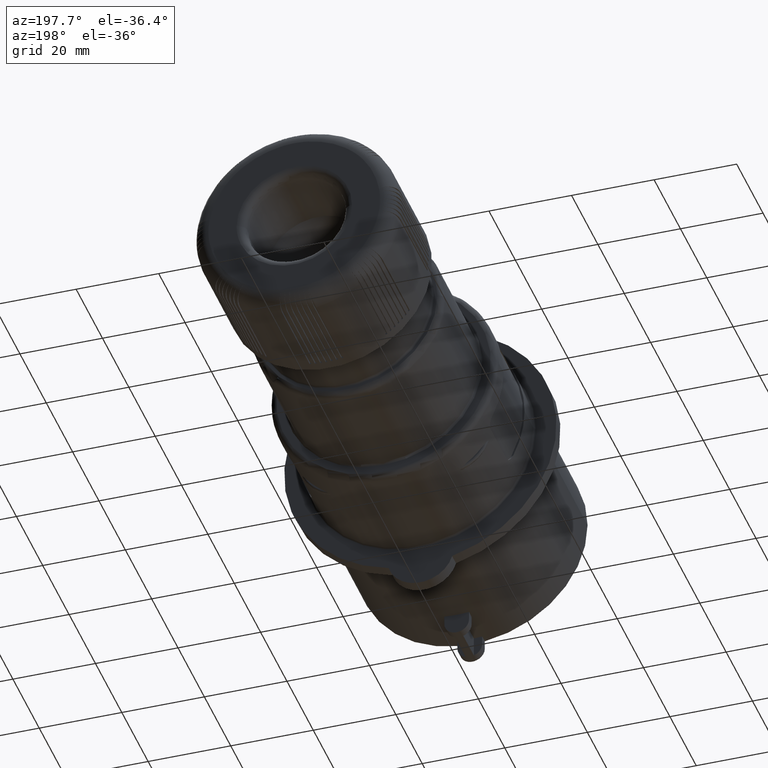
[diagram: clean part render]
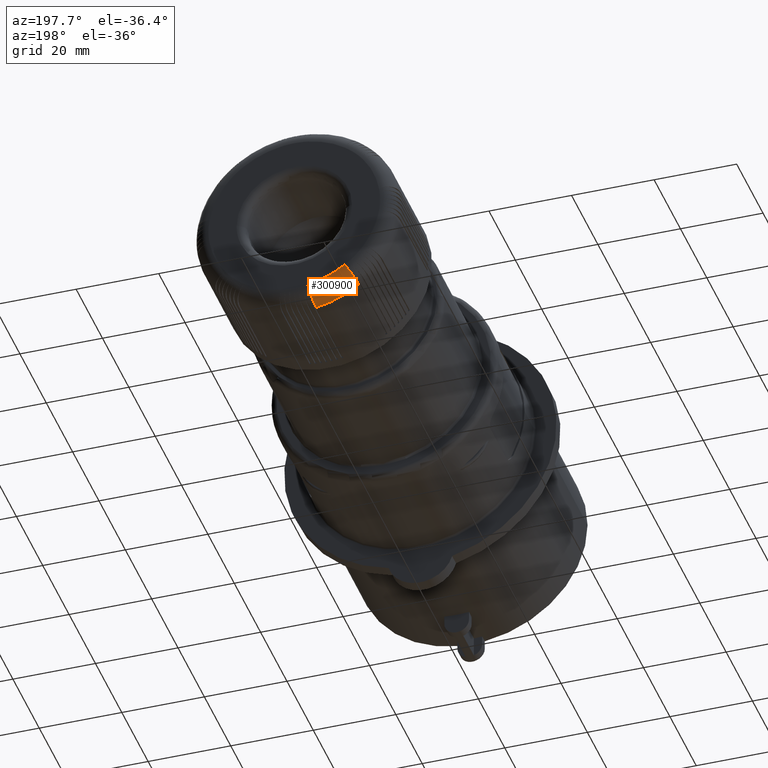
[diagram: same view with one face highlighted and labeled with its STEP entity id]
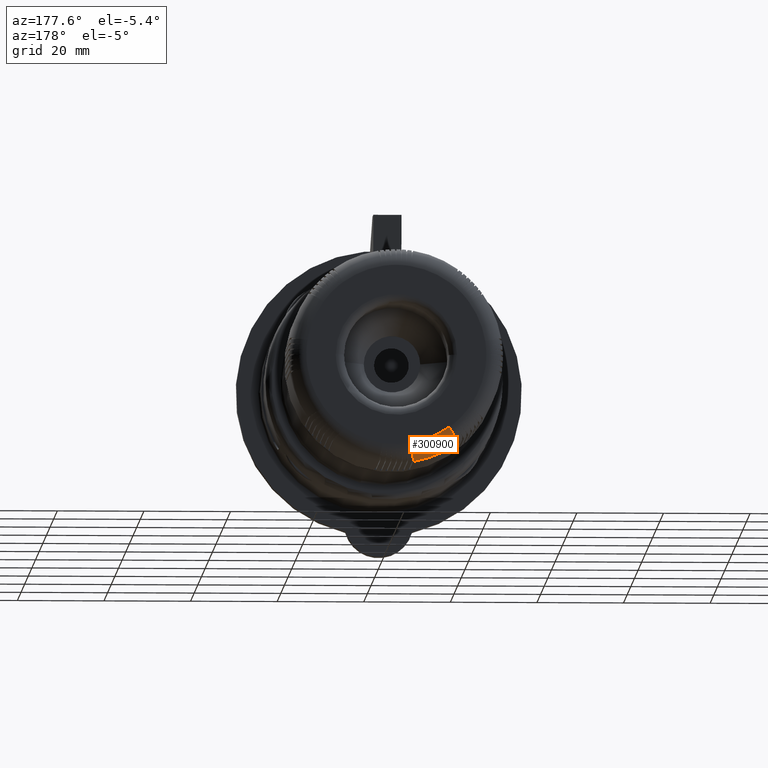
[diagram: same view with one face highlighted and labeled with its STEP entity id]
A machine part, auxiliary view. The second image highlights one B-rep face of the part: STEP entity #300900.
A second angle (auxiliary view) of the same face is appended — the face is thin or edge-on in the first view.
In plain terms, the highlighted toroidal blend (fillet) surface has major radius 20.7491 mm and minor (blend) radius 4 mm.
Its self-contained STEP definition (entity closure, byte-faithful):
#36900=CARTESIAN_POINT('',(-200.,15.772253609118,8.56357709134279E-13));
#36910=DIRECTION('',(-3.37423673639642E-15,-1.,-2.94209101525666E-15));
#36920=DIRECTION('',(-1.,3.38164839058091E-15,-7.60381550260158E-31));
#36930=AXIS2_PLACEMENT_3D('',#36900,#36910,#36920);
#36940=TOROIDAL_SURFACE('',#36930,20.7490806411889,4.);
#38060=CARTESIAN_POINT('',(-200.,15.772253609118,8.56357709134279E-13));
#38070=DIRECTION('',(-3.37423673639642E-15,-1.,-2.94209101525666E-15));
#38080=DIRECTION('',(-0.707106781186548,4.46631818539067E-15,
-0.707106781186547));
#38090=AXIS2_PLACEMENT_3D('',#38060,#38070,#38080);
#38100=CIRCLE('',#38090,24.7490806411889);
#115860=CARTESIAN_POINT('',(-199.999999999999,19.772253609118,
6.97595816612881E-13));
#115870=DIRECTION('',(-3.37423673639642E-15,-1.,-2.94209101525666E-15));
#115880=DIRECTION('',(-2.22044604925016E-16,2.94209101525666E-15,-1.));
#115890=AXIS2_PLACEMENT_3D('',#115860,#115870,#115880);
#115900=CIRCLE('',#115890,20.7490806411889);
#136910=CARTESIAN_POINT('',(-214.377065476291,15.7722536091181,
-20.1448996243331));
#136920=CARTESIAN_POINT('',(-214.377065476291,15.8373451316884,
-20.1448996243331));
#136930=CARTESIAN_POINT('',(-214.376198843939,15.9025855482711,
-20.1435651275375));
#136940=CARTESIAN_POINT('',(-214.374456420752,15.9678645135954,
-20.1408820311187));
#136950=CARTESIAN_POINT('',(-214.372714003787,16.0331432457743,
-20.1381989442827));
#136960=CARTESIAN_POINT('',(-214.370095772089,16.0984597159869,
-20.1341672210239));
#136970=CARTESIAN_POINT('',(-214.36659852975,16.1636974400494,
-20.1287819400759));
#136980=CARTESIAN_POINT('',(-214.363101295382,16.2289350154161,
-20.1233966714026));
#136990=CARTESIAN_POINT('',(-214.358725066785,16.2940929942921,
-20.1166578703113));
#137000=CARTESIAN_POINT('',(-214.353473129793,16.3590517754315,
-20.1085705965455));
#137010=CARTESIAN_POINT('',(-214.348221198422,16.4240104870442,
-20.1004833314356));
#137020=CARTESIAN_POINT('',(-214.342093614959,16.4887691340278,
-20.0910476803471));
#137030=CARTESIAN_POINT('',(-214.335100320739,16.5532078994871,
-20.0802789515962));
#137040=CARTESIAN_POINT('',(-214.328107025835,16.6176466712454,
-20.0695102217926));
#137050=CARTESIAN_POINT('',(-214.320248114984,16.6817646994634,
-20.0574085603191));
#137060=CARTESIAN_POINT('',(-214.311540029837,16.7454447325883,
-20.0439992850995));
#137070=CARTESIAN_POINT('',(-214.302831933636,16.8091248465503,
-20.0305899928578));
#137080=CARTESIAN_POINT('',(-214.293274794169,16.8723661289777,
-20.015873288639));
#137090=CARTESIAN_POINT('',(-214.282891073936,16.9350565585943,
-19.9998837616577));
#137100=CARTESIAN_POINT('',(-214.272507327857,16.9977471442524,
-19.9838941948772));
#137110=CARTESIAN_POINT('',(-214.261297164965,17.0598860870984,
-19.9666320578011));
#137120=CARTESIAN_POINT('',(-214.249288257971,17.1213691445422,
-19.9481399626676));
#137130=CARTESIAN_POINT('',(-214.237279048351,17.1828537513689,
-19.9296474015303));
#137140=CARTESIAN_POINT('',(-214.224472507011,17.2436761331595,
-19.909927057213));
#137150=CARTESIAN_POINT('',(-214.210896788184,17.303758164746,
-19.8890222834339));
#137160=CARTESIAN_POINT('',(-214.197314853085,17.3638677076797,
-19.8681079374338));
#137170=CARTESIAN_POINT('',(-214.182901765384,17.4235066289632,
-19.8459137286632));
#137180=CARTESIAN_POINT('',(-214.167671955205,17.4825670109249,
-19.8224618775629));
#137190=CARTESIAN_POINT('',(-214.1524422003,17.5416271785378,
-19.7990101115768));
#137200=CARTESIAN_POINT('',(-214.136395868205,17.6001080451021,
-19.7743009269865));
#137210=CARTESIAN_POINT('',(-214.119554161581,17.6579000857989,
-19.7483669730249));
#137220=CARTESIAN_POINT('',(-214.10271249429,17.7156919915242,
-19.7224330796313));
#137230=CARTESIAN_POINT('',(-214.08507564336,17.7727943005716,
-19.6952747108126));
#137240=CARTESIAN_POINT('',(-214.066671444445,17.8290990458586,
-19.6669347297161));
#137250=CARTESIAN_POINT('',(-214.048267266267,17.8854037277046,
-19.6385947805516));
#137260=CARTESIAN_POINT('',(-214.029095971389,17.9409100869699,
-19.6090735752585));
#137270=CARTESIAN_POINT('',(-214.009191595365,17.9955145239038,
-19.5784235239922));
#137280=CARTESIAN_POINT('',(-213.989287218569,18.0501189629544,
-19.5477734715377));
#137290=CARTESIAN_POINT('',(-213.968650026573,18.1038207516424,
-19.5159949826304));
#137300=CARTESIAN_POINT('',(-213.947319544128,18.1565231234467,
-19.483148920053));
#137310=CARTESIAN_POINT('',(-213.925989035974,18.2092255587733,
-19.4503028178861));
#137320=CARTESIAN_POINT('',(-213.903965531583,18.2609278974029,
-19.4163895950938));
#137330=CARTESIAN_POINT('',(-213.881293060696,18.3115423361042,
-19.3814770515311));
#137340=CARTESIAN_POINT('',(-213.858620535005,18.3621568971487,
-19.3465644235793));
#137350=CARTESIAN_POINT('',(-213.835299357964,18.4116829434852,
-19.3106529601385));
#137360=CARTESIAN_POINT('',(-213.811376800888,18.460043425185,
-19.2738154526519));
#137370=CARTESIAN_POINT('',(-213.787454149095,18.508404098358,
-19.236977799315));
#137380=CARTESIAN_POINT('',(-213.762930470793,18.555598624713,
-19.1992146463148));
#137390=CARTESIAN_POINT('',(-213.737854649046,18.6015622731909,
-19.1606012669669));
#137400=CARTESIAN_POINT('',(-213.712777364911,18.6475286022057,
-19.1219856357396));
#137410=CARTESIAN_POINT('',(-213.687030855719,18.6924784007744,
-19.0823394882945));
#137420=CARTESIAN_POINT('',(-213.66065066153,18.7363224991257,
-19.0417175515236));
#137430=CARTESIAN_POINT('',(-213.634270564629,18.7801664357826,
-19.001095764564));
#137440=CARTESIAN_POINT('',(-213.607257072388,18.8229040746597,
-18.9594986343127));
#137450=CARTESIAN_POINT('',(-213.579652319731,18.8644493690633,
-18.9169910428604));
#137460=CARTESIAN_POINT('',(-213.552047633191,18.9059945639587,
-18.8744835532211));
#137470=CARTESIAN_POINT('',(-213.523852020077,18.9463468396472,
-18.8310661164528));
#137480=CARTESIAN_POINT('',(-213.495113432722,18.9854261088946,
-18.7868125726756));
#137490=CARTESIAN_POINT('',(-213.466374879547,19.0245053316636,
-18.7425590815308));
#137500=CARTESIAN_POINT('',(-213.437093720979,19.0623110118797,
-18.6974700513528));
#137510=CARTESIAN_POINT('',(-213.407322753375,19.0987713243904,
-18.6516267813992));
#137520=CARTESIAN_POINT('',(-213.377551786635,19.135231635842,
-18.6057835127773));
#137530=CARTESIAN_POINT('',(-213.347291405545,19.1703460953821,
-18.5591866121467));
#137540=CARTESIAN_POINT('',(-213.31659809412,19.2040529311964,
-18.5119230572591));
#137550=CARTESIAN_POINT('',(-213.285904748027,19.2377598050818,
-18.4646594489886));
#137560=CARTESIAN_POINT('',(-213.254778882676,19.2700586344629,
-18.4167298194654));
#137570=CARTESIAN_POINT('',(-213.22327933308,19.3008989918913,
-18.3682247666677));
#137580=CARTESIAN_POINT('',(-213.191779710084,19.3317394211844,
-18.3197196008428));
#137590=CARTESIAN_POINT('',(-213.159906820166,19.361121031457,
-18.2706396543614));
#137600=CARTESIAN_POINT('',(-213.127720328361,19.3890055239802,
-18.2210768033239));
#137610=CARTESIAN_POINT('',(-213.095533720206,19.4168901173033,
-18.1715137731213));
#137620=CARTESIAN_POINT('',(-213.063033922406,19.4432773288176,
-18.1214684731587));
#137630=CARTESIAN_POINT('',(-213.030279718451,19.4681412383178,
-18.0710314220704));
#137640=CARTESIAN_POINT('',(-212.997540020344,19.4929941363435,
-18.0206167080285));
#137650=CARTESIAN_POINT('',(-212.964398748882,19.5164372647475,
-17.9695836252482));
#137660=CARTESIAN_POINT('',(-212.930898907738,19.5384192530609,
-17.9179983935771));
#137670=CARTESIAN_POINT('',(-212.897399853584,19.5604007249654,
-17.8664143737652));
#137680=CARTESIAN_POINT('',(-212.863545440164,19.5809186499787,
-17.8142831486695));
#137690=CARTESIAN_POINT('',(-212.829392155314,19.5999229866113,
-17.7616917019292));
#137700=CARTESIAN_POINT('',(-212.795238954654,19.618927276397,
-17.7091003848303));
#137710=CARTESIAN_POINT('',(-212.760787306533,19.6364176819605,
-17.6560494989437));
#137720=CARTESIAN_POINT('',(-212.726097883478,19.6523536124868,
-17.6026324717665));
#137730=CARTESIAN_POINT('',(-212.691408504215,19.6682895228955,
-17.5492155120232));
#137740=CARTESIAN_POINT('',(-212.656481798707,19.6826707219179,
-17.495433101908));
#137750=CARTESIAN_POINT('',(-212.621381255659,19.6954675353376,
-17.4413830054563));
#137760=CARTESIAN_POINT('',(-212.586280716403,19.7082643473744,
-17.387332914845));
#137770=CARTESIAN_POINT('',(-212.551006801857,19.7194766027908,
-17.3330158497019));
#137780=CARTESIAN_POINT('',(-212.515624387302,19.7290864119744,
-17.2785317091931));
#137790=CARTESIAN_POINT('',(-212.48024193588,19.738696231171,
-17.2240475119148));
#137800=CARTESIAN_POINT('',(-212.444751449247,19.7467035024638,
-17.169396955));
#137810=CARTESIAN_POINT('',(-212.409217698875,19.7531024043633,
-17.1146797777689));
#137820=CARTESIAN_POINT('',(-212.373683869241,19.7595013205364,
-17.0599624784848));
#137830=CARTESIAN_POINT('',(-212.33810723186,19.7642918373961,
-17.0051792610514));
#137840=CARTESIAN_POINT('',(-212.302550900965,19.7674798933288,
-16.9504273128651));
#137850=CARTESIAN_POINT('',(-212.266994445628,19.7706679604192,
-16.8956751730548));
#137860=CARTESIAN_POINT('',(-212.231458731757,19.7722536091181,
-16.8409549722996));
#137870=CARTESIAN_POINT('',(-212.196003599518,19.7722536091181,
-16.7863588563773));
#137880=B_SPLINE_CURVE_WITH_KNOTS('',3,(#136910,#136920,#136930,#136940,
#136950,#136960,#136970,#136980,#136990,#137000,#137010,#137020,#137030,
#137040,#137050,#137060,#137070,#137080,#137090,#137100,#137110,#137120,
#137130,#137140,#137150,#137160,#137170,#137180,#137190,#137200,#137210,
#137220,#137230,#137240,#137250,#137260,#137270,#137280,#137290,#137300,
#137310,#137320,#137330,#137340,#137350,#137360,#137370,#137380,#137390,
#137400,#137410,#137420,#137430,#137440,#137450,#137460,#137470,#137480,
#137490,#137500,#137510,#137520,#137530,#137540,#137550,#137560,#137570,
#137580,#137590,#137600,#137610,#137620,#137630,#137640,#137650,#137660,
#137670,#137680,#137690,#137700,#137710,#137720,#137730,#137740,#137750,
#137760,#137770,#137780,#137790,#137800,#137810,#137820,#137830,#137840,
#137850,#137860,#137870),.UNSPECIFIED.,.F.,.F.,(4,3,3,3,3,3,3,3,3,3,3,3,
3,3,3,3,3,3,3,3,3,3,3,3,3,3,3,3,3,3,3,3,4),(0.,0.195689105513218,
0.392072543133135,0.588927632410991,0.786012510527309,0.983076380401962,
1.17986918984075,1.37615136151592,1.57170745523093,1.76735744047809,
1.96371123468733,2.16054796692925,2.35762698117694,2.55469810205211,
2.75151130072726,2.94782637716585,3.14342331153557,3.33902936667144,
3.53534965183967,3.73216538056535,3.92923739661961,4.12631644078724,
4.32315278594795,4.51950585072803,4.71515440312348,4.91071064004362,
5.10699057161034,5.30378054464068,5.5008429496413,5.69792950198935,
5.89479084772114,6.09118610698367,6.28689296167259),.UNSPECIFIED.);
#137890=CARTESIAN_POINT('',(-214.377065476291,15.7722536091181,
-20.1448996243331));
#137900=VERTEX_POINT('',#137890);
#137910=CARTESIAN_POINT('',(-212.196003599518,19.7722536091187,
-16.7863588563773));
#137920=VERTEX_POINT('',#137910);
#137930=EDGE_CURVE('',#137900,#137920,#137880,.T.);
#159150=CARTESIAN_POINT('',(-203.24587133018,19.7722536091186,
-20.4936250273698));
#159160=VERTEX_POINT('',#159150);
#159170=EDGE_CURVE('',#137920,#159160,#115900,.T.);
#299650=CARTESIAN_POINT('',(-204.078474638839,15.7722536091181,
-24.4107156225372));
#299660=CARTESIAN_POINT('',(-204.078474638839,15.8373452254528,
-24.4107156225372));
#299670=CARTESIAN_POINT('',(-204.078143807759,15.9025857265537,
-24.4091591846753));
#299680=CARTESIAN_POINT('',(-204.077478649736,15.9678647649755,
-24.406029862216));
#299690=CARTESIAN_POINT('',(-204.07681349409,16.0331435702776,
-24.402900550932));
#299700=CARTESIAN_POINT('',(-204.07581400238,16.0984601021749,
-24.3981983121418));
#299710=CARTESIAN_POINT('',(-204.074478954978,16.1636978751132,
-24.3919174079375));
#299720=CARTESIAN_POINT('',(-204.073143910619,16.2289354993823,
-24.3856365180467));
#299730=CARTESIAN_POINT('',(-204.071473316834,16.2940935143416,
-24.3777769922258));
#299740=CARTESIAN_POINT('',(-204.06946842838,16.3590523181274,
-24.3683447336398));
#299750=CARTESIAN_POINT('',(-204.067463542071,16.4240110524117,
-24.3589124851457));
#299760=CARTESIAN_POINT('',(-204.065124382588,16.4887697086276,
-24.3479076050096));
#299770=CARTESIAN_POINT('',(-204.062454745372,16.5532084699715,
-24.3353479493829));
#299780=CARTESIAN_POINT('',(-204.059785107895,16.6176472376382,
-24.3227882925239));
#299790=CARTESIAN_POINT('',(-204.056785028879,16.681765248419,
-24.3086740304548));
#299800=CARTESIAN_POINT('',(-204.053460785181,16.7454452515293,
-24.2930346934648));
#299810=CARTESIAN_POINT('',(-204.050136537263,16.8091253355017,
-24.2773953366156));
#299820=CARTESIAN_POINT('',(-204.046488174684,16.8723665753686,
-24.2602311401775));
#299830=CARTESIAN_POINT('',(-204.042524272652,16.9350569512761,
-24.2415824473278));
#299840=CARTESIAN_POINT('',(-204.038560360752,16.9977474832526,
-24.2229337080519));
#299850=CARTESIAN_POINT('',(-204.034280971989,17.0598863612811,
-24.2028007668244));
#299860=CARTESIAN_POINT('',(-204.029696670433,17.1213693448332,
-24.1812333236944));
#299870=CARTESIAN_POINT('',(-204.025112252312,17.1828538917166,
-24.1596653321678));
#299880=CARTESIAN_POINT('',(-204.020223465493,17.2436761450737,
-24.1366653985001));
#299890=CARTESIAN_POINT('',(-204.015041043316,17.303758150868,
-24.1122840190857));
#299900=CARTESIAN_POINT('',(-204.00985623836,17.3638677812202,
-24.0878914295791));
#299910=CARTESIAN_POINT('',(-204.004354147232,17.4235067797388,
-24.0620061259945));
#299920=CARTESIAN_POINT('',(-203.998540278986,17.4825672272853,
-24.0346540263881));
#299930=CARTESIAN_POINT('',(-203.992726431837,17.5416274605091,
-24.0073020260389));
#299940=CARTESIAN_POINT('',(-203.986600863035,17.6001083810221,
-23.9784834906172));
#299950=CARTESIAN_POINT('',(-203.980171666994,17.6579004634039,
-23.9482365013421));
#299960=CARTESIAN_POINT('',(-203.973742485965,17.7156924108392,
-23.9179895826947));
#299970=CARTESIAN_POINT('',(-203.96700975057,17.7727947493284,
-23.8863145530383));
#299980=CARTESIAN_POINT('',(-203.959984087287,17.829099511945,
-23.8532614060149));
#299990=CARTESIAN_POINT('',(-203.952958431916,17.8854042111423,
-23.8202082962213));
#300000=CARTESIAN_POINT('',(-203.945639936951,17.9409105756473,
-23.7857774844497));
#300010=CARTESIAN_POINT('',(-203.938041595575,17.9955150065238,
-23.7500300988292));
#300020=CARTESIAN_POINT('',(-203.930443253901,18.0501194395368,
-23.71428271181));
#300030=CARTESIAN_POINT('',(-203.922565167341,18.1038212108951,
-23.6772192285754));
#300040=CARTESIAN_POINT('',(-203.914422424459,18.1565235554632,
-23.638910635239));
#300050=CARTESIAN_POINT('',(-203.90627967176,18.2092259635735,
-23.6006019957148));
#300060=CARTESIAN_POINT('',(-203.897872375052,18.2609282650899,
-23.5610487744819));
#300070=CARTESIAN_POINT('',(-203.889217342536,18.3115426586623,
-23.5203300479105));
#300080=CARTESIAN_POINT('',(-203.880562289096,18.3621571745978,
-23.4796112228992));
#300090=CARTESIAN_POINT('',(-203.871659620154,18.4116831678233,
-23.4377274585372));
#300100=CARTESIAN_POINT('',(-203.86252738122,18.4600435907116,
-23.3947636522834));
#300110=CARTESIAN_POINT('',(-203.8533951059,18.5084042062854,
-23.3517996748463));
#300120=CARTESIAN_POINT('',(-203.844033396557,18.5555986643664,
-23.3077562951911));
#300130=CARTESIAN_POINT('',(-203.834460910892,18.601562250605,
-23.2627212909096));
#300140=CARTESIAN_POINT('',(-203.824887839889,18.6475286474258,
-23.2176835328268));
#300150=CARTESIAN_POINT('',(-203.815059298081,18.6924785041656,
-23.171443879109));
#300160=CARTESIAN_POINT('',(-203.80498885316,18.7363226505157,
-23.1240661607184));
#300170=CARTESIAN_POINT('',(-203.794918445374,18.7801666351899,
-23.0766886170338));
#300180=CARTESIAN_POINT('',(-203.784606245053,18.8229043119086,
-23.028173528907));
#300190=CARTESIAN_POINT('',(-203.774068337353,18.8644496342391,
-22.9785965710491));
#300200=CARTESIAN_POINT('',(-203.763530454888,18.9059948570776,
-22.9290197319172));
#300210=CARTESIAN_POINT('',(-203.75276699249,18.9463471507951,
-22.8783816226336));
#300220=CARTESIAN_POINT('',(-203.741796255978,18.9854264290674,
-22.8267683653168));
#300230=CARTESIAN_POINT('',(-203.73082553251,19.0245056608759,
-22.775155169366));
#300240=CARTESIAN_POINT('',(-203.719647675735,19.0623113411311,
-22.7225674878259));
#300250=CARTESIAN_POINT('',(-203.708282840541,19.0987716461026,
-22.6691001419801));
#300260=CARTESIAN_POINT('',(-203.696918005672,19.1352319500282,
-22.6156327976682));
#300270=CARTESIAN_POINT('',(-203.685366343054,19.1703463944707,
-22.5612864978989));
#300280=CARTESIAN_POINT('',(-203.673649415188,19.2040532094232,
-22.5061626862704));
#300290=CARTESIAN_POINT('',(-203.661932474084,19.2377600624592,
-22.4510388123604));
#300300=CARTESIAN_POINT('',(-203.650050424658,19.2700588652367,
-22.3951381648691));
#300310=CARTESIAN_POINT('',(-203.638025726753,19.3008991923796,
-22.3385664090505));
#300320=CARTESIAN_POINT('',(-203.626001000824,19.3317395913991,
-22.2819945213855));
#300330=CARTESIAN_POINT('',(-203.613833785724,19.3611211677292,
-22.2247522748787));
#300340=CARTESIAN_POINT('',(-203.601546857995,19.3890056248583,
-22.1669468247326));
#300350=CARTESIAN_POINT('',(-203.589259885845,19.416890182799,
-22.1091411656004));
#300360=CARTESIAN_POINT('',(-203.576853358434,19.4432773574951,
-22.0507730431858));
#300370=CARTESIAN_POINT('',(-203.564349715598,19.4681412309761,
-21.9919480286253));
#300380=CARTESIAN_POINT('',(-203.55185158611,19.4929941409989,
-21.9331489523237));
#300390=CARTESIAN_POINT('',(-203.53920013876,19.5164373172041,
-21.8736285721901));
#300400=CARTESIAN_POINT('',(-203.526411823933,19.5384193234607,
-21.8134642812044));
#300410=CARTESIAN_POINT('',(-203.513623806757,19.5604008180794,
-21.7533013905613));
#300420=CARTESIAN_POINT('',(-203.500700135835,19.5809187585551,
-21.6925002992144));
#300430=CARTESIAN_POINT('',(-203.487662375382,19.5999231044942,
-21.6311624588279));
#300440=CARTESIAN_POINT('',(-203.474624647063,19.618927403594,
-21.5698247696188));
#300450=CARTESIAN_POINT('',(-203.461472991063,19.636417812322,
-21.5079510928128));
#300460=CARTESIAN_POINT('',(-203.448230568941,19.6523537414041,
-21.4456503949764));
#300470=CARTESIAN_POINT('',(-203.434988163532,19.6682896503743,
-21.3833497757665));
#300480=CARTESIAN_POINT('',(-203.421655163285,19.6826708433564,
-21.3206229413591));
#300490=CARTESIAN_POINT('',(-203.408255804681,19.6954676479658,
-21.2575839154237));
#300500=CARTESIAN_POINT('',(-203.39485644752,19.7082644511971,
-21.194544896277));
#300510=CARTESIAN_POINT('',(-203.381390908464,19.7194766950461,
-21.1311945157878));
#300520=CARTESIAN_POINT('',(-203.367883953164,19.7290864918783,
-21.0676492871946));
#300530=CARTESIAN_POINT('',(-203.354376983785,19.7386962987269,
-21.0041039923666));
#300540=CARTESIAN_POINT('',(-203.340828775596,19.7467035568966,
-20.9403646841919));
#300550=CARTESIAN_POINT('',(-203.327264054478,19.7531024468773,
-20.8765476887938));
#300560=CARTESIAN_POINT('',(-203.313699303097,19.7595013511343,
-20.8127305510174));
#300570=CARTESIAN_POINT('',(-203.300118212856,19.7642918572921,
-20.7488365449523));
#300580=CARTESIAN_POINT('',(-203.286544876845,19.7674799055719,
-20.6849790196677));
#300590=CARTESIAN_POINT('',(-203.272971493323,19.7706679650109,
-20.6211212708628));
#300600=CARTESIAN_POINT('',(-203.259406030077,19.7722536091181,
-20.5573007840244));
#300610=CARTESIAN_POINT('',(-203.24587133018,19.7722536091181,
-20.4936250273699));
#300620=B_SPLINE_CURVE_WITH_KNOTS('',3,(#299650,#299660,#299670,#299680,
#299690,#299700,#299710,#299720,#299730,#299740,#299750,#299760,#299770,
#299780,#299790,#299800,#299810,#299820,#299830,#299840,#299850,#299860,
#299870,#299880,#299890,#299900,#299910,#299920,#299930,#299940,#299950,
#299960,#299970,#299980,#299990,#300000,#300010,#300020,#300030,#300040,
#300050,#300060,#300070,#300080,#300090,#300100,#300110,#300120,#300130,
#300140,#300150,#300160,#300170,#300180,#300190,#300200,#300210,#300220,
#300230,#300240,#300250,#300260,#300270,#300280,#300290,#300300,#300310,
#300320,#300330,#300340,#300350,#300360,#300370,#300380,#300390,#300400,
#300410,#300420,#300430,#300440,#300450,#300460,#300470,#300480,#300490,
#300500,#300510,#300520,#300530,#300540,#300550,#300560,#300570,#300580,
#300590,#300600,#300610),.UNSPECIFIED.,.F.,.F.,(4,3,3,3,3,3,3,3,3,3,3,3,
3,3,3,3,3,3,3,3,3,3,3,3,3,3,3,3,3,3,3,3,4),(0.,0.195689357195018,
0.392072980299324,0.588928181053884,0.78601309222723,0.98307691545016,
1.17986960028018,1.37615157429729,1.57170744020594,1.767357679864,
1.96371166294837,2.16054851051174,2.35762756191619,2.55469864029588,
2.75151171836749,2.94782660077558,3.14342327956699,3.33902959225976,
3.53535007014168,3.73216591852634,3.92923797638423,4.12631698281822,
4.32315321204266,4.51950608712794,4.715154383908,4.91071084923295,
5.10699097805607,5.30378107577852,5.50084352793357,5.69793004803883,
5.89479128327094,6.0911863579952,6.28689296167261),.UNSPECIFIED.);
#300630=CARTESIAN_POINT('',(-204.078474638839,15.7722536091181,
-24.4107156225372));
#300640=VERTEX_POINT('',#300630);
#300650=EDGE_CURVE('',#300640,#159160,#300620,.T.);
#300830=ORIENTED_EDGE('',*,*,#300650,.F.);
#300840=ORIENTED_EDGE('',*,*,#159170,.T.);
#300850=ORIENTED_EDGE('',*,*,#137930,.T.);
#300860=EDGE_CURVE('',#137900,#300640,#38100,.T.);
#300870=ORIENTED_EDGE('',*,*,#300860,.F.);
#300880=EDGE_LOOP('',(#300870,#300850,#300840,#300830));
#300890=FACE_OUTER_BOUND('',#300880,.T.);
#300900=ADVANCED_FACE('',(#300890),#36940,.T.);